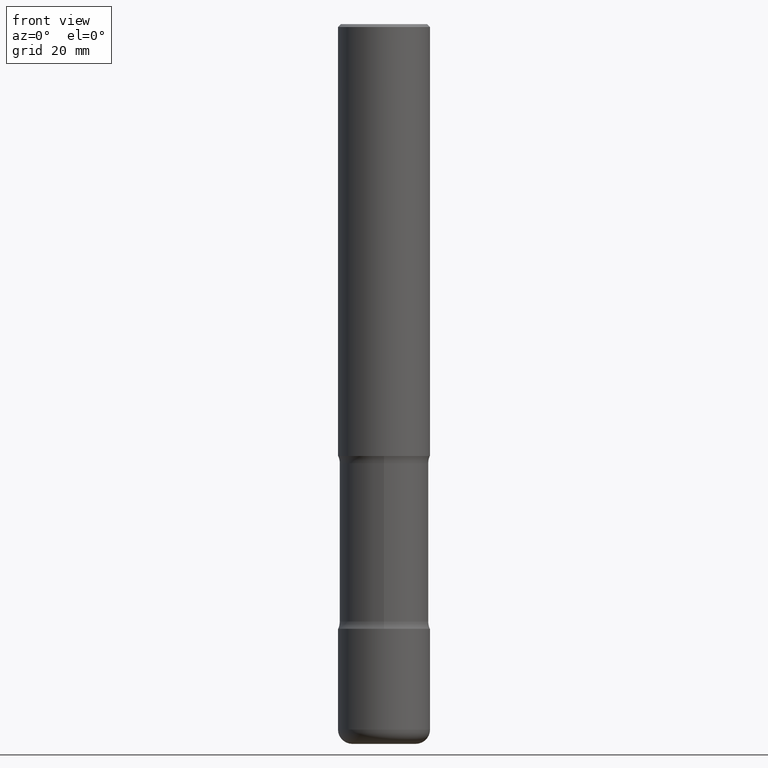
[diagram: clean part render]
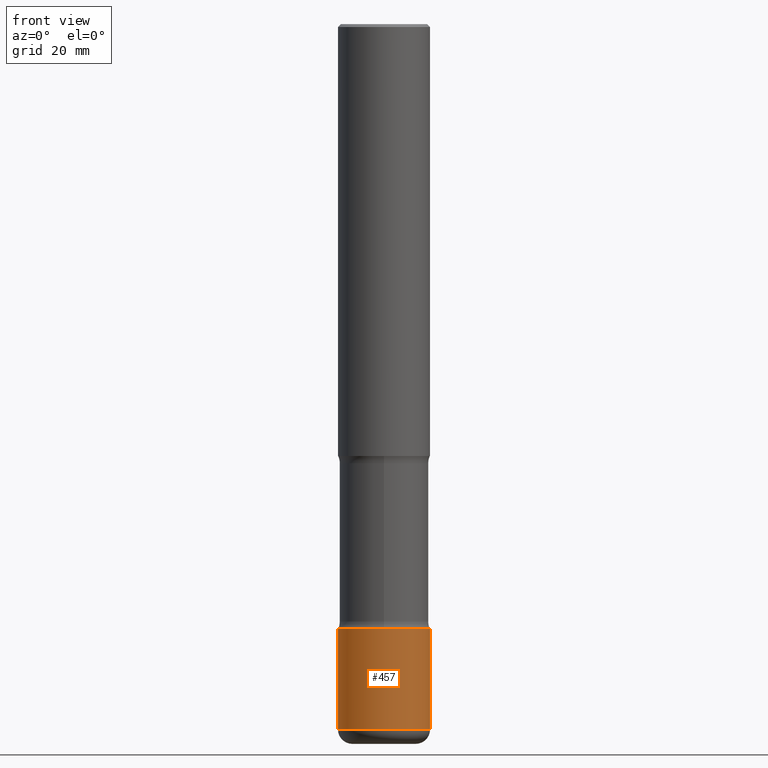
[diagram: same view with one face highlighted and labeled with its STEP entity id]
A machine part, front view. The second image highlights one B-rep face of the part: STEP entity #457.
In plain terms, the highlighted cylindrical surface (partial cylindrical patch) has radius 7.9997 mm, axis along (-0, 0, 1).
Its self-contained STEP definition (entity closure, byte-faithful):
#5 = EDGE_LOOP ( 'NONE', ( #474, #393, #135, #41 ) ) ;
#31 = CARTESIAN_POINT ( 'NONE',  ( 1.010932349788873450E-28, -1.443343470664368071E-14, -4.133899999999999686 ) ) ;
#34 = LINE ( 'NONE', #501, #291 ) ;
#41 = ORIENTED_EDGE ( 'NONE', *, *, #451, .F. ) ;
#48 = VERTEX_POINT ( 'NONE', #399 ) ;
#58 = CARTESIAN_POINT ( 'NONE',  ( 0.3149500000000002298, -1.903834944444389716E-14, -4.822899999999999743 ) ) ;
#64 = CIRCLE ( 'NONE', #217, 0.3149500000000001743 ) ;
#78 = CYLINDRICAL_SURFACE ( 'NONE', #281, 0.3149500000000001743 ) ;
#80 = VERTEX_POINT ( 'NONE', #58 ) ;
#82 = VERTEX_POINT ( 'NONE', #403 ) ;
#104 = VECTOR ( 'NONE', #402, 39.37007874015748143 ) ;
#116 = CARTESIAN_POINT ( 'NONE',  ( 1.179425150535029431E-28, -1.683906534910660571E-14, -4.822899999999999743 ) ) ;
#135 = ORIENTED_EDGE ( 'NONE', *, *, #528, .T. ) ;
#158 = FACE_OUTER_BOUND ( 'NONE', #5, .T. ) ;
#161 = DIRECTION ( 'NONE',  ( 1.000000000000000000, -6.982962677686272233E-15, 0.000000000000000000 ) ) ;
#217 = AXIS2_PLACEMENT_3D ( 'NONE', #116, #373, #161 ) ;
#248 = CARTESIAN_POINT ( 'NONE',  ( 0.000000000000000000, 0.000000000000000000, 0.000000000000000000 ) ) ;
#265 = VERTEX_POINT ( 'NONE', #537 ) ;
#281 = AXIS2_PLACEMENT_3D ( 'NONE', #248, #330, #416 ) ;
#288 = DIRECTION ( 'NONE',  ( -2.445468806185136597E-29, 3.491481338843145583E-15, 1.000000000000000000 ) ) ;
#291 = VECTOR ( 'NONE', #397, 39.37007874015748143 ) ;
#330 = DIRECTION ( 'NONE',  ( -2.445468806185136597E-29, 3.491481338843145583E-15, 1.000000000000000000 ) ) ;
#373 = DIRECTION ( 'NONE',  ( -2.445468806185136597E-29, 3.491481338843145583E-15, 1.000000000000000000 ) ) ;
#377 = CIRCLE ( 'NONE', #540, 0.3149500000000001743 ) ;
#380 = EDGE_CURVE ( 'NONE', #82, #80, #64, .T. ) ;
#393 = ORIENTED_EDGE ( 'NONE', *, *, #380, .T. ) ;
#397 = DIRECTION ( 'NONE',  ( -2.445468806185136877E-29, 3.491481338843145188E-15, 1.000000000000000000 ) ) ;
#399 = CARTESIAN_POINT ( 'NONE',  ( -0.3149500000000001743, -1.339839568159870722E-14, -4.133899999999999686 ) ) ;
#402 = DIRECTION ( 'NONE',  ( -2.445468806185136877E-29, 3.491481338843145188E-15, 1.000000000000000000 ) ) ;
#403 = CARTESIAN_POINT ( 'NONE',  ( -0.3149500000000002298, -1.460121100283016973E-14, -4.822899999999999743 ) ) ;
#416 = DIRECTION ( 'NONE',  ( 1.000000000000000000, -6.982962677686265922E-15, 4.876176775795935232E-29 ) ) ;
#451 = EDGE_CURVE ( 'NONE', #48, #265, #377, .T. ) ;
#457 = ADVANCED_FACE ( 'NONE', ( #158 ), #78, .T. ) ;
#464 = DIRECTION ( 'NONE',  ( 1.000000000000000000, -6.982962677686265922E-15, 0.000000000000000000 ) ) ;
#474 = ORIENTED_EDGE ( 'NONE', *, *, #489, .F. ) ;
#489 = EDGE_CURVE ( 'NONE', #82, #48, #542, .T. ) ;
#501 = CARTESIAN_POINT ( 'NONE',  ( 0.3149500000000001743, -2.199284095337290660E-15, 1.535751875536930690E-29 ) ) ;
#528 = EDGE_CURVE ( 'NONE', #80, #265, #34, .T. ) ;
#537 = CARTESIAN_POINT ( 'NONE',  ( 0.3149500000000001743, -1.663271880198097216E-14, -4.133899999999999686 ) ) ;
#540 = AXIS2_PLACEMENT_3D ( 'NONE', #31, #288, #464 ) ;
#542 = LINE ( 'NONE', #550, #104 ) ;
#550 = CARTESIAN_POINT ( 'NONE',  ( -0.3149500000000001743, 2.237854346276436774E-15, -1.549218606675783237E-29 ) ) ;